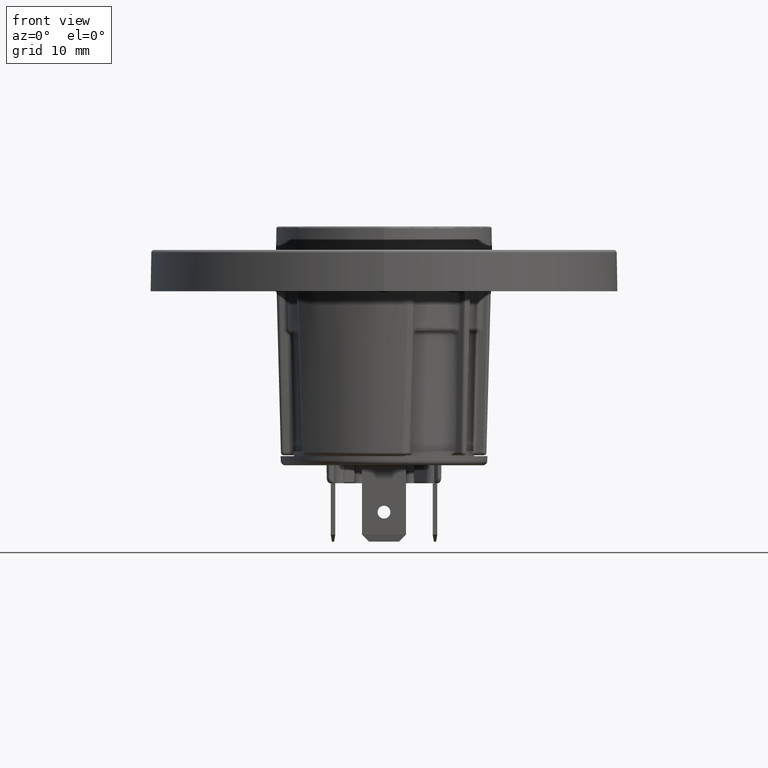
[diagram: clean part render]
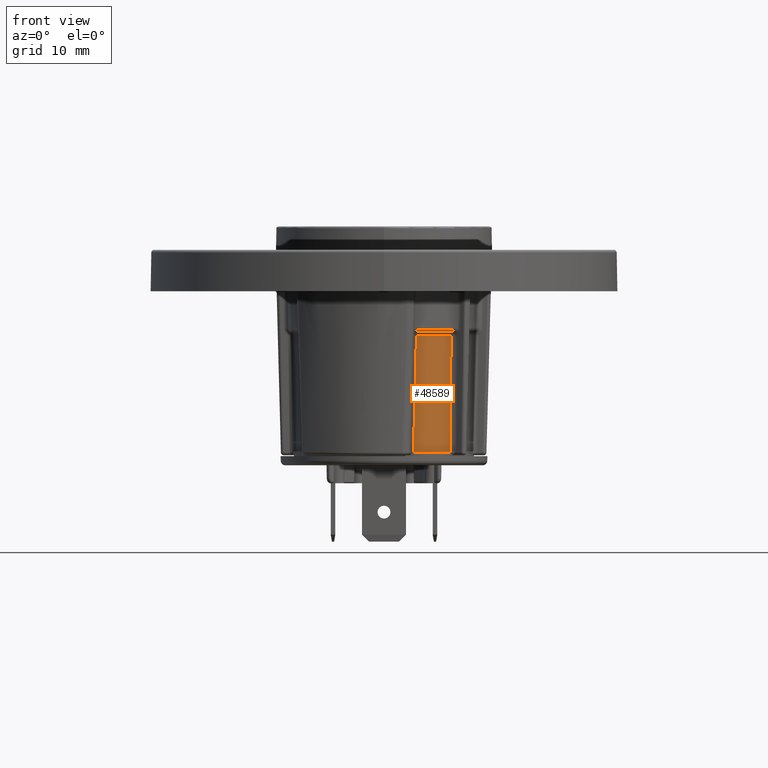
[diagram: same view with one face highlighted and labeled with its STEP entity id]
A machine part, front view. The second image highlights one B-rep face of the part: STEP entity #48589.
In plain terms, the highlighted conical surface has half-angle 1 deg.
Its self-contained STEP definition (entity closure, byte-faithful):
#16913=CARTESIAN_POINT('',(3.209096817022E0,-9.259615858131E0,
-1.755532418672E1));
#16914=CARTESIAN_POINT('',(3.463080695806E0,-9.171634536354E0,
-1.754994171239E1));
#16915=CARTESIAN_POINT('',(3.961103132619E0,-8.975636966470E0,
-1.755769600093E1));
#16916=CARTESIAN_POINT('',(4.680879421065E0,-8.622210188256E0,
-1.755456575975E1));
#16917=CARTESIAN_POINT('',(5.369579735005E0,-8.211006370172E0,
-1.755545529166E1));
#16918=CARTESIAN_POINT('',(6.022340146501E0,-7.744966346365E0,
-1.755502740520E1));
#16919=CARTESIAN_POINT('',(6.634849776772E0,-7.227143506593E0,
-1.755584941912E1));
#16920=CARTESIAN_POINT('',(7.013662197175E0,-6.849749044018E0,
-1.755394263964E1));
#16921=CARTESIAN_POINT('',(7.195292269821E0,-6.653306662300E0,
-1.755523699877E1));
#16923=CARTESIAN_POINT('',(3.209096817022E0,-9.259615858131E0,
-1.755532418672E1));
#16924=CARTESIAN_POINT('',(3.233176507017E0,-9.268923916565E0,
-1.659949756356E1));
#16925=CARTESIAN_POINT('',(3.285241942025E0,-9.286892470013E0,
-1.464229523640E1));
#16926=CARTESIAN_POINT('',(3.360715055680E0,-9.316240590684E0,
-1.160428713862E1));
#16927=CARTESIAN_POINT('',(3.442770068596E0,-9.346574494616E0,
-8.362334629322E0));
#16928=CARTESIAN_POINT('',(3.501666606557E0,-9.368180745265E0,
-6.025118448258E0));
#16929=CARTESIAN_POINT('',(3.532181109906E0,-9.379243975962E0,
-4.815860466169E0));
#16931=CARTESIAN_POINT('',(0.E0,0.E0,-4.815860466167E0));
#16932=DIRECTION('',(0.E0,0.E0,1.E0));
#16933=DIRECTION('',(3.524321456991E-1,-9.358373697806E-1,0.E0));
#16934=AXIS2_PLACEMENT_3D('',#16931,#16932,#16933);
#16936=CARTESIAN_POINT('',(7.195292269821E0,-6.653306662300E0,
-1.755523699877E1));
#16937=CARTESIAN_POINT('',(7.203063576716E0,-6.669576479531E0,
-1.659552035531E1));
#16938=CARTESIAN_POINT('',(7.218532239280E0,-6.703297940737E0,
-1.463242800656E1));
#16939=CARTESIAN_POINT('',(7.243274684433E0,-6.754670968929E0,
-1.158973887219E1));
#16940=CARTESIAN_POINT('',(7.269348395363E0,-6.809586698214E0,
-8.350241792807E0));
#16941=CARTESIAN_POINT('',(7.288109563932E0,-6.849022755524E0,
-6.020206836498E0));
#16942=CARTESIAN_POINT('',(7.297791585380E0,-6.869407465725E0,
-4.815860466167E0));
#22200=CARTESIAN_POINT('',(3.532181109906E0,-9.379243975962E0,
-4.815860466167E0));
#22201=VERTEX_POINT('',#22200);
#22208=CARTESIAN_POINT('',(7.297791585380E0,-6.869407465725E0,
-4.815860466167E0));
#22209=VERTEX_POINT('',#22208);
#24372=VERTEX_POINT('',#16913);
#24373=VERTEX_POINT('',#16921);
#48576=CARTESIAN_POINT('',(0.E0,0.E0,-1.118554809405E1));
#48577=DIRECTION('',(0.E0,0.E0,1.E0));
#48578=DIRECTION('',(1.E0,0.E0,0.E0));
#48579=AXIS2_PLACEMENT_3D('',#48576,#48577,#48578);
#48580=CONICAL_SURFACE('',#48579,9.911117869440E0,1.E0);
#48581=ORIENTED_EDGE('',*,*,#37202,.F.);
#48583=ORIENTED_EDGE('',*,*,#48582,.T.);
#48585=ORIENTED_EDGE('',*,*,#48584,.T.);
#48586=ORIENTED_EDGE('',*,*,#48568,.F.);
#48587=EDGE_LOOP('',(#48581,#48583,#48585,#48586));
#48588=FACE_OUTER_BOUND('',#48587,.F.);
#48589=ADVANCED_FACE('',(#48588),#48580,.T.);
#16922=B_SPLINE_CURVE_WITH_KNOTS('',3,(#16913,#16914,#16915,#16916,#16917,
#16918,#16919,#16920,#16921),.UNSPECIFIED.,.F.,.F.,(4,1,1,1,1,1,4),(0.E0,
1.666666666667E-1,3.333333333333E-1,5.E-1,6.666666666667E-1,8.333333333333E-1,
1.E0),.UNSPECIFIED.);
#16930=B_SPLINE_CURVE_WITH_KNOTS('',3,(#16923,#16924,#16925,#16926,#16927,
#16928,#16929),.UNSPECIFIED.,.F.,.F.,(4,1,1,1,4),(0.E0,2.5E-1,5.E-1,7.5E-1,
1.E0),.UNSPECIFIED.);
#16935=CIRCLE('',#16934,1.002230118056E1);
#16943=B_SPLINE_CURVE_WITH_KNOTS('',3,(#16936,#16937,#16938,#16939,#16940,
#16941,#16942),.UNSPECIFIED.,.F.,.F.,(4,1,1,1,4),(0.E0,2.5E-1,5.E-1,7.5E-1,
1.E0),.UNSPECIFIED.);
#37202=EDGE_CURVE('',#24372,#24373,#16922,.T.);
#48568=EDGE_CURVE('',#24373,#22209,#16943,.T.);
#48582=EDGE_CURVE('',#24372,#22201,#16930,.T.);
#48584=EDGE_CURVE('',#22201,#22209,#16935,.T.);